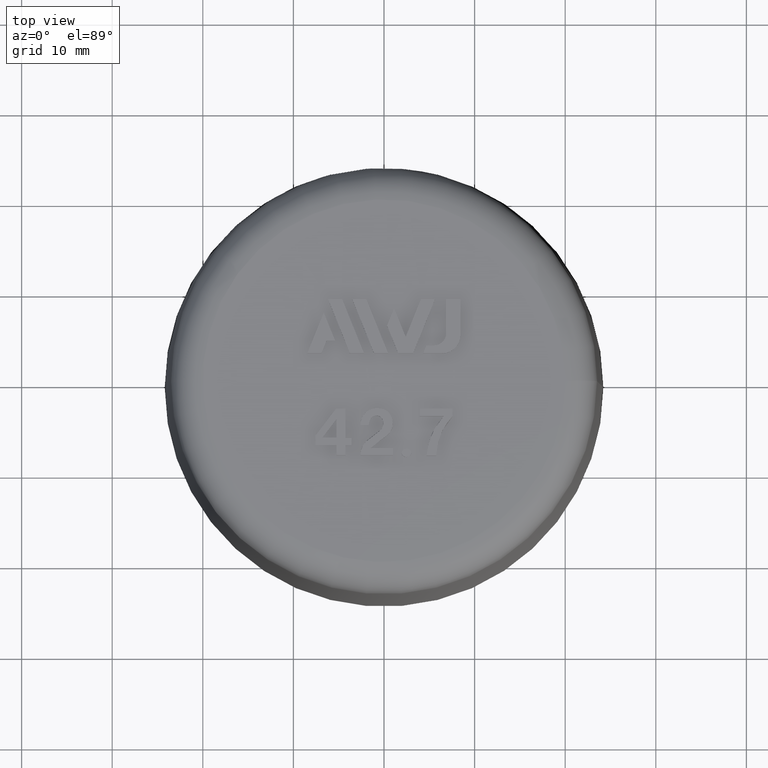
[diagram: clean part render]
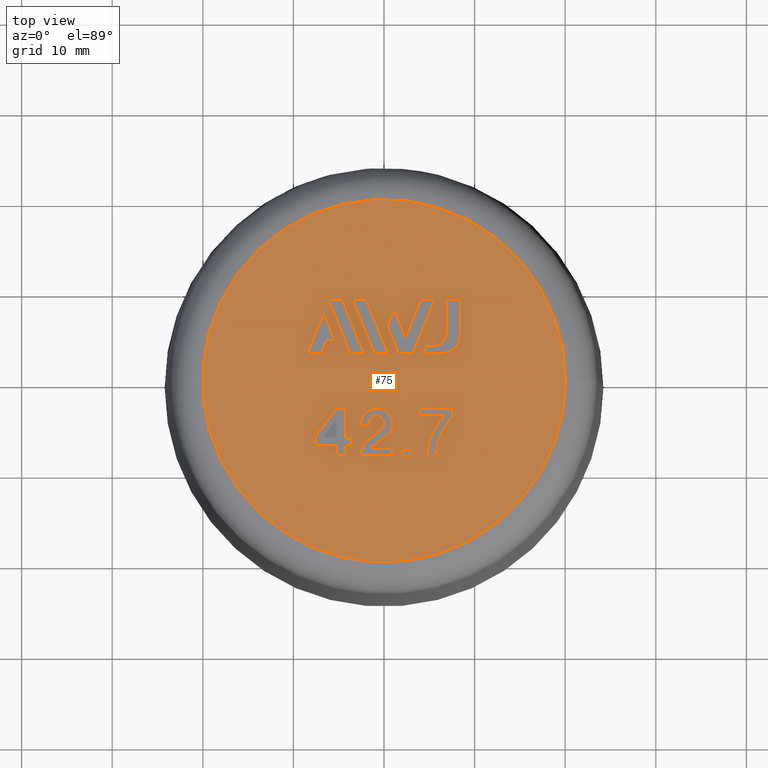
[diagram: same view with one face highlighted and labeled with its STEP entity id]
A machine part, top view. The second image highlights one B-rep face of the part: STEP entity #75.
In plain terms, the highlighted planar face has unit normal (0, 0, -1).
Its self-contained STEP definition (entity closure, byte-faithful):
#75 = ADVANCED_FACE( '', ( #149, #150, #151, #152, #153, #154, #155, #156, #157, #158 ), #159, .F. );
#149 = FACE_BOUND( '', #311, .T. );
#150 = FACE_BOUND( '', #312, .T. );
#151 = FACE_BOUND( '', #313, .T. );
#152 = FACE_BOUND( '', #314, .T. );
#153 = FACE_BOUND( '', #315, .T. );
#154 = FACE_BOUND( '', #316, .T. );
#155 = FACE_BOUND( '', #317, .T. );
#156 = FACE_OUTER_BOUND( '', #318, .T. );
#157 = FACE_BOUND( '', #319, .T. );
#158 = FACE_BOUND( '', #320, .T. );
#159 = PLANE( '', #321 );
#311 = EDGE_LOOP( '', ( #478, #479, #480, #481, #482, #483, #484 ) );
#312 = EDGE_LOOP( '', ( #485 ) );
#313 = EDGE_LOOP( '', ( #486, #487, #488, #489, #490, #491 ) );
#314 = EDGE_LOOP( '', ( #492, #493, #494, #495, #496, #497, #498, #499, #500, #501, #502 ) );
#315 = EDGE_LOOP( '', ( #503, #504, #505, #506, #507 ) );
#316 = EDGE_LOOP( '', ( #508, #509, #510, #511 ) );
#317 = EDGE_LOOP( '', ( #512, #513, #514, #515, #516, #517, #518, #519 ) );
#318 = EDGE_LOOP( '', ( #520 ) );
#319 = EDGE_LOOP( '', ( #521, #522, #523, #524, #525, #526, #527 ) );
#320 = EDGE_LOOP( '', ( #528, #529, #530, #531 ) );
#321 = AXIS2_PLACEMENT_3D( '', #532, #533, #534 );
#478 = ORIENTED_EDGE( '', *, *, #1086, .T. );
#479 = ORIENTED_EDGE( '', *, *, #1087, .T. );
#480 = ORIENTED_EDGE( '', *, *, #1088, .T. );
#481 = ORIENTED_EDGE( '', *, *, #1089, .T. );
#482 = ORIENTED_EDGE( '', *, *, #1090, .T. );
#483 = ORIENTED_EDGE( '', *, *, #1091, .T. );
#484 = ORIENTED_EDGE( '', *, *, #1092, .T. );
#485 = ORIENTED_EDGE( '', *, *, #1093, .T. );
#486 = ORIENTED_EDGE( '', *, *, #1094, .T. );
#487 = ORIENTED_EDGE( '', *, *, #1095, .T. );
#488 = ORIENTED_EDGE( '', *, *, #1096, .T. );
#489 = ORIENTED_EDGE( '', *, *, #1097, .T. );
#490 = ORIENTED_EDGE( '', *, *, #1098, .T. );
#491 = ORIENTED_EDGE( '', *, *, #1099, .T. );
#492 = ORIENTED_EDGE( '', *, *, #1100, .T. );
#493 = ORIENTED_EDGE( '', *, *, #1101, .T. );
#494 = ORIENTED_EDGE( '', *, *, #1102, .T. );
#495 = ORIENTED_EDGE( '', *, *, #1103, .T. );
#496 = ORIENTED_EDGE( '', *, *, #1104, .T. );
#497 = ORIENTED_EDGE( '', *, *, #1105, .T. );
#498 = ORIENTED_EDGE( '', *, *, #1106, .T. );
#499 = ORIENTED_EDGE( '', *, *, #1107, .T. );
#500 = ORIENTED_EDGE( '', *, *, #1108, .T. );
#501 = ORIENTED_EDGE( '', *, *, #1109, .T. );
#502 = ORIENTED_EDGE( '', *, *, #1110, .T. );
#503 = ORIENTED_EDGE( '', *, *, #1111, .F. );
#504 = ORIENTED_EDGE( '', *, *, #1112, .F. );
#505 = ORIENTED_EDGE( '', *, *, #1113, .F. );
#506 = ORIENTED_EDGE( '', *, *, #1114, .F. );
#507 = ORIENTED_EDGE( '', *, *, #1115, .F. );
#508 = ORIENTED_EDGE( '', *, *, #1116, .F. );
#509 = ORIENTED_EDGE( '', *, *, #1117, .F. );
#510 = ORIENTED_EDGE( '', *, *, #1118, .F. );
#511 = ORIENTED_EDGE( '', *, *, #1119, .F. );
#512 = ORIENTED_EDGE( '', *, *, #1120, .F. );
#513 = ORIENTED_EDGE( '', *, *, #1121, .F. );
#514 = ORIENTED_EDGE( '', *, *, #1122, .F. );
#515 = ORIENTED_EDGE( '', *, *, #1123, .F. );
#516 = ORIENTED_EDGE( '', *, *, #1124, .F. );
#517 = ORIENTED_EDGE( '', *, *, #1125, .F. );
#518 = ORIENTED_EDGE( '', *, *, #1126, .F. );
#519 = ORIENTED_EDGE( '', *, *, #1127, .F. );
#520 = ORIENTED_EDGE( '', *, *, #1128, .T. );
#521 = ORIENTED_EDGE( '', *, *, #1129, .F. );
#522 = ORIENTED_EDGE( '', *, *, #1130, .F. );
#523 = ORIENTED_EDGE( '', *, *, #1131, .F. );
#524 = ORIENTED_EDGE( '', *, *, #1132, .F. );
#525 = ORIENTED_EDGE( '', *, *, #1133, .F. );
#526 = ORIENTED_EDGE( '', *, *, #1134, .F. );
#527 = ORIENTED_EDGE( '', *, *, #1135, .F. );
#528 = ORIENTED_EDGE( '', *, *, #1136, .F. );
#529 = ORIENTED_EDGE( '', *, *, #1137, .F. );
#530 = ORIENTED_EDGE( '', *, *, #1138, .F. );
#531 = ORIENTED_EDGE( '', *, *, #1139, .F. );
#532 = CARTESIAN_POINT( '', ( -2.60228850187255E-015, 20.0182014383200, 42.5000000000000 ) );
#533 = DIRECTION( '', ( 6.12303176911189E-017, 0.000000000000000, -1.00000000000000 ) );
#534 = DIRECTION( '', ( -1.00000000000000, 0.000000000000000, -6.12303176911189E-017 ) );
#1086 = EDGE_CURVE( '', #1259, #1260, #1261, .T. );
#1087 = EDGE_CURVE( '', #1260, #1262, #1263, .T. );
#1088 = EDGE_CURVE( '', #1262, #1264, #1265, .T. );
#1089 = EDGE_CURVE( '', #1264, #1266, #1267, .T. );
#1090 = EDGE_CURVE( '', #1266, #1268, #1269, .T. );
#1091 = EDGE_CURVE( '', #1268, #1270, #1271, .T. );
#1092 = EDGE_CURVE( '', #1270, #1259, #1272, .T. );
#1093 = EDGE_CURVE( '', #1273, #1273, #1274, .T. );
#1094 = EDGE_CURVE( '', #1275, #1276, #1277, .T. );
#1095 = EDGE_CURVE( '', #1276, #1278, #1279, .T. );
#1096 = EDGE_CURVE( '', #1278, #1280, #1281, .T. );
#1097 = EDGE_CURVE( '', #1280, #1282, #1283, .T. );
#1098 = EDGE_CURVE( '', #1282, #1284, #1285, .T. );
#1099 = EDGE_CURVE( '', #1284, #1275, #1286, .T. );
#1100 = EDGE_CURVE( '', #1287, #1288, #1289, .T. );
#1101 = EDGE_CURVE( '', #1288, #1290, #1291, .T. );
#1102 = EDGE_CURVE( '', #1290, #1292, #1293, .T. );
#1103 = EDGE_CURVE( '', #1292, #1294, #1295, .T. );
#1104 = EDGE_CURVE( '', #1294, #1296, #1297, .T. );
#1105 = EDGE_CURVE( '', #1296, #1298, #1299, .T. );
#1106 = EDGE_CURVE( '', #1298, #1300, #1301, .T. );
#1107 = EDGE_CURVE( '', #1300, #1302, #1303, .T. );
#1108 = EDGE_CURVE( '', #1302, #1304, #1305, .T. );
#1109 = EDGE_CURVE( '', #1304, #1306, #1307, .T. );
#1110 = EDGE_CURVE( '', #1306, #1287, #1308, .T. );
#1111 = EDGE_CURVE( '', #1309, #1310, #1311, .T. );
#1112 = EDGE_CURVE( '', #1312, #1309, #1313, .T. );
#1113 = EDGE_CURVE( '', #1314, #1312, #1315, .T. );
#1114 = EDGE_CURVE( '', #1316, #1314, #1317, .T. );
#1115 = EDGE_CURVE( '', #1310, #1316, #1318, .T. );
#1116 = EDGE_CURVE( '', #1319, #1320, #1321, .T. );
#1117 = EDGE_CURVE( '', #1322, #1319, #1323, .T. );
#1118 = EDGE_CURVE( '', #1324, #1322, #1325, .T. );
#1119 = EDGE_CURVE( '', #1320, #1324, #1326, .T. );
#1120 = EDGE_CURVE( '', #1327, #1328, #1329, .T. );
#1121 = EDGE_CURVE( '', #1330, #1327, #1331, .T. );
#1122 = EDGE_CURVE( '', #1332, #1330, #1333, .T. );
#1123 = EDGE_CURVE( '', #1334, #1332, #1335, .F. );
#1124 = EDGE_CURVE( '', #1336, #1334, #1337, .T. );
#1125 = EDGE_CURVE( '', #1338, #1336, #1339, .T. );
#1126 = EDGE_CURVE( '', #1340, #1338, #1341, .T. );
#1127 = EDGE_CURVE( '', #1328, #1340, #1342, .T. );
#1128 = EDGE_CURVE( '', #1343, #1343, #1344, .T. );
#1129 = EDGE_CURVE( '', #1345, #1346, #1347, .T. );
#1130 = EDGE_CURVE( '', #1348, #1345, #1349, .T. );
#1131 = EDGE_CURVE( '', #1350, #1348, #1351, .T. );
#1132 = EDGE_CURVE( '', #1352, #1350, #1353, .T. );
#1133 = EDGE_CURVE( '', #1354, #1352, #1355, .T. );
#1134 = EDGE_CURVE( '', #1356, #1354, #1357, .T. );
#1135 = EDGE_CURVE( '', #1346, #1356, #1358, .T. );
#1136 = EDGE_CURVE( '', #1359, #1360, #1361, .T. );
#1137 = EDGE_CURVE( '', #1362, #1359, #1363, .T. );
#1138 = EDGE_CURVE( '', #1364, #1362, #1365, .T. );
#1139 = EDGE_CURVE( '', #1360, #1364, #1366, .T. );
#1259 = VERTEX_POINT( '', #1550 );
#1260 = VERTEX_POINT( '', #1551 );
#1261 = B_SPLINE_CURVE_WITH_KNOTS( '', 2, ( #1552, #1553, #1554 ), .UNSPECIFIED., .F., .F., ( 3, 3 ), ( 8.00000000000000, 9.00000000000000 ), .UNSPECIFIED. );
#1262 = VERTEX_POINT( '', #1555 );
#1263 = B_SPLINE_CURVE_WITH_KNOTS( '', 2, ( #1556, #1557, #1558 ), .UNSPECIFIED., .F., .F., ( 3, 3 ), ( 0.000000000000000, 1.00000000000000 ), .UNSPECIFIED. );
#1264 = VERTEX_POINT( '', #1559 );
#1265 = B_SPLINE_CURVE_WITH_KNOTS( '', 2, ( #1560, #1561, #1562 ), .UNSPECIFIED., .F., .F., ( 3, 3 ), ( 1.00000000000000, 2.00000000000000 ), .UNSPECIFIED. );
#1266 = VERTEX_POINT( '', #1563 );
#1267 = B_SPLINE_CURVE_WITH_KNOTS( '', 2, ( #1564, #1565, #1566 ), .UNSPECIFIED., .F., .F., ( 3, 3 ), ( 2.00000000000000, 3.00000000000000 ), .UNSPECIFIED. );
#1268 = VERTEX_POINT( '', #1567 );
#1269 = B_SPLINE_CURVE_WITH_KNOTS( '', 2, ( #1568, #1569, #1570, #1571, #1572 ), .UNSPECIFIED., .F., .F., ( 3, 2, 3 ), ( 3.00000000000000, 4.00000000000000, 5.00000000000000 ), .UNSPECIFIED. );
#1270 = VERTEX_POINT( '', #1573 );
#1271 = B_SPLINE_CURVE_WITH_KNOTS( '', 2, ( #1574, #1575, #1576 ), .UNSPECIFIED., .F., .F., ( 3, 3 ), ( 5.00000000000000, 6.00000000000000 ), .UNSPECIFIED. );
#1272 = B_SPLINE_CURVE_WITH_KNOTS( '', 2, ( #1577, #1578, #1579, #1580, #1581 ), .UNSPECIFIED., .F., .F., ( 3, 2, 3 ), ( 6.00000000000000, 7.00000000000000, 8.00000000000000 ), .UNSPECIFIED. );
#1273 = VERTEX_POINT( '', #1582 );
#1274 = B_SPLINE_CURVE_WITH_KNOTS( '', 2, ( #1583, #1584, #1585, #1586, #1587, #1588, #1589, #1590, #1591, #1592, #1593, #1594, #1595, #1596, #1597, #1598, #1599 ), .UNSPECIFIED., .T., .F., ( 3, 2, 2, 2, 2, 2, 2, 2, 3 ), ( 0.000000000000000, 1.00000000000000, 2.00000000000000, 3.00000000000000, 4.00000000000000, 5.00000000000000, 6.00000000000000, 7.00000000000000, 8.00000000000000 ), .UNSPECIFIED. );
#1275 = VERTEX_POINT( '', #1600 );
#1276 = VERTEX_POINT( '', #1601 );
#1277 = B_SPLINE_CURVE_WITH_KNOTS( '', 2, ( #1602, #1603, #1604 ), .UNSPECIFIED., .F., .F., ( 3, 3 ), ( 15.0000000000000, 16.0000000000000 ), .UNSPECIFIED. );
#1278 = VERTEX_POINT( '', #1605 );
#1279 = B_SPLINE_CURVE_WITH_KNOTS( '', 2, ( #1606, #1607, #1608, #1609, #1610, #1611, #1612, #1613, #1614, #1615, #1616, #1617, #1618 ), .UNSPECIFIED., .F., .F., ( 3, 2, 2, 2, 2, 2, 3 ), ( 0.000000000000000, 1.00000000000000, 2.00000000000000, 3.00000000000000, 4.00000000000000, 5.00000000000000, 6.00000000000000 ), .UNSPECIFIED. );
#1280 = VERTEX_POINT( '', #1619 );
#1281 = B_SPLINE_CURVE_WITH_KNOTS( '', 2, ( #1620, #1621, #1622 ), .UNSPECIFIED., .F., .F., ( 3, 3 ), ( 6.00000000000000, 7.00000000000000 ), .UNSPECIFIED. );
#1282 = VERTEX_POINT( '', #1623 );
#1283 = B_SPLINE_CURVE_WITH_KNOTS( '', 2, ( #1624, #1625, #1626 ), .UNSPECIFIED., .F., .F., ( 3, 3 ), ( 7.00000000000000, 8.00000000000000 ), .UNSPECIFIED. );
#1284 = VERTEX_POINT( '', #1627 );
#1285 = B_SPLINE_CURVE_WITH_KNOTS( '', 2, ( #1628, #1629, #1630 ), .UNSPECIFIED., .F., .F., ( 3, 3 ), ( 8.00000000000000, 9.00000000000000 ), .UNSPECIFIED. );
#1286 = B_SPLINE_CURVE_WITH_KNOTS( '', 2, ( #1631, #1632, #1633, #1634, #1635, #1636, #1637, #1638, #1639, #1640, #1641, #1642, #1643 ), .UNSPECIFIED., .F., .F., ( 3, 2, 2, 2, 2, 2, 3 ), ( 9.00000000000000, 10.0000000000000, 11.0000000000000, 12.0000000000000, 13.0000000000000, 14.0000000000000, 15.0000000000000 ), .UNSPECIFIED. );
#1287 = VERTEX_POINT( '', #1644 );
#1288 = VERTEX_POINT( '', #1645 );
#1289 = B_SPLINE_CURVE_WITH_KNOTS( '', 2, ( #1646, #1647, #1648 ), .UNSPECIFIED., .F., .F., ( 3, 3 ), ( 10.0000000000000, 11.0000000000000 ), .UNSPECIFIED. );
#1290 = VERTEX_POINT( '', #1649 );
#1291 = B_SPLINE_CURVE_WITH_KNOTS( '', 2, ( #1650, #1651, #1652 ), .UNSPECIFIED., .F., .F., ( 3, 3 ), ( 0.000000000000000, 1.00000000000000 ), .UNSPECIFIED. );
#1292 = VERTEX_POINT( '', #1653 );
#1293 = B_SPLINE_CURVE_WITH_KNOTS( '', 2, ( #1654, #1655, #1656 ), .UNSPECIFIED., .F., .F., ( 3, 3 ), ( 1.00000000000000, 2.00000000000000 ), .UNSPECIFIED. );
#1294 = VERTEX_POINT( '', #1657 );
#1295 = B_SPLINE_CURVE_WITH_KNOTS( '', 2, ( #1658, #1659, #1660 ), .UNSPECIFIED., .F., .F., ( 3, 3 ), ( 2.00000000000000, 3.00000000000000 ), .UNSPECIFIED. );
#1296 = VERTEX_POINT( '', #1661 );
#1297 = B_SPLINE_CURVE_WITH_KNOTS( '', 2, ( #1662, #1663, #1664 ), .UNSPECIFIED., .F., .F., ( 3, 3 ), ( 3.00000000000000, 4.00000000000000 ), .UNSPECIFIED. );
#1298 = VERTEX_POINT( '', #1665 );
#1299 = B_SPLINE_CURVE_WITH_KNOTS( '', 2, ( #1666, #1667, #1668 ), .UNSPECIFIED., .F., .F., ( 3, 3 ), ( 4.00000000000000, 5.00000000000000 ), .UNSPECIFIED. );
#1300 = VERTEX_POINT( '', #1669 );
#1301 = B_SPLINE_CURVE_WITH_KNOTS( '', 2, ( #1670, #1671, #1672 ), .UNSPECIFIED., .F., .F., ( 3, 3 ), ( 5.00000000000000, 6.00000000000000 ), .UNSPECIFIED. );
#1302 = VERTEX_POINT( '', #1673 );
#1303 = B_SPLINE_CURVE_WITH_KNOTS( '', 2, ( #1674, #1675, #1676 ), .UNSPECIFIED., .F., .F., ( 3, 3 ), ( 6.00000000000000, 7.00000000000000 ), .UNSPECIFIED. );
#1304 = VERTEX_POINT( '', #1677 );
#1305 = B_SPLINE_CURVE_WITH_KNOTS( '', 2, ( #1678, #1679, #1680 ), .UNSPECIFIED., .F., .F., ( 3, 3 ), ( 7.00000000000000, 8.00000000000000 ), .UNSPECIFIED. );
#1306 = VERTEX_POINT( '', #1681 );
#1307 = B_SPLINE_CURVE_WITH_KNOTS( '', 2, ( #1682, #1683, #1684 ), .UNSPECIFIED., .F., .F., ( 3, 3 ), ( 8.00000000000000, 9.00000000000000 ), .UNSPECIFIED. );
#1308 = B_SPLINE_CURVE_WITH_KNOTS( '', 2, ( #1685, #1686, #1687 ), .UNSPECIFIED., .F., .F., ( 3, 3 ), ( 9.00000000000000, 10.0000000000000 ), .UNSPECIFIED. );
#1309 = VERTEX_POINT( '', #1688 );
#1310 = VERTEX_POINT( '', #1689 );
#1311 = LINE( '', #1690, #1691 );
#1312 = VERTEX_POINT( '', #1692 );
#1313 = LINE( '', #1693, #1694 );
#1314 = VERTEX_POINT( '', #1695 );
#1315 = LINE( '', #1696, #1697 );
#1316 = VERTEX_POINT( '', #1698 );
#1317 = LINE( '', #1699, #1700 );
#1318 = LINE( '', #1701, #1702 );
#1319 = VERTEX_POINT( '', #1703 );
#1320 = VERTEX_POINT( '', #1704 );
#1321 = LINE( '', #1705, #1706 );
#1322 = VERTEX_POINT( '', #1707 );
#1323 = LINE( '', #1708, #1709 );
#1324 = VERTEX_POINT( '', #1710 );
#1325 = LINE( '', #1711, #1712 );
#1326 = LINE( '', #1713, #1714 );
#1327 = VERTEX_POINT( '', #1715 );
#1328 = VERTEX_POINT( '', #1716 );
#1329 = LINE( '', #1717, #1718 );
#1330 = VERTEX_POINT( '', #1719 );
#1331 = LINE( '', #1720, #1721 );
#1332 = VERTEX_POINT( '', #1722 );
#1333 = LINE( '', #1723, #1724 );
#1334 = VERTEX_POINT( '', #1725 );
#1335 = CIRCLE( '', #1726, 1.99950000000000 );
#1336 = VERTEX_POINT( '', #1727 );
#1337 = LINE( '', #1728, #1729 );
#1338 = VERTEX_POINT( '', #1730 );
#1339 = LINE( '', #1731, #1732 );
#1340 = VERTEX_POINT( '', #1733 );
#1341 = LINE( '', #1734, #1735 );
#1342 = CIRCLE( '', #1736, 1.33300000000000 );
#1343 = VERTEX_POINT( '', #1737 );
#1344 = CIRCLE( '', #1738, 20.0182014383200 );
#1345 = VERTEX_POINT( '', #1739 );
#1346 = VERTEX_POINT( '', #1740 );
#1347 = LINE( '', #1741, #1742 );
#1348 = VERTEX_POINT( '', #1743 );
#1349 = LINE( '', #1744, #1745 );
#1350 = VERTEX_POINT( '', #1746 );
#1351 = LINE( '', #1747, #1748 );
#1352 = VERTEX_POINT( '', #1749 );
#1353 = LINE( '', #1750, #1751 );
#1354 = VERTEX_POINT( '', #1752 );
#1355 = LINE( '', #1753, #1754 );
#1356 = VERTEX_POINT( '', #1755 );
#1357 = LINE( '', #1756, #1757 );
#1358 = LINE( '', #1758, #1759 );
#1359 = VERTEX_POINT( '', #1760 );
#1360 = VERTEX_POINT( '', #1761 );
#1361 = LINE( '', #1762, #1763 );
#1362 = VERTEX_POINT( '', #1764 );
#1363 = LINE( '', #1765, #1766 );
#1364 = VERTEX_POINT( '', #1767 );
#1365 = LINE( '', #1768, #1769 );
#1366 = LINE( '', #1770, #1771 );
#1550 = CARTESIAN_POINT( '', ( 6.58500000000000, -3.90974791239786, 42.5000000000000 ) );
#1551 = CARTESIAN_POINT( '', ( 3.94500000000000, -3.90974791239786, 42.5000000000000 ) );
#1552 = CARTESIAN_POINT( '', ( 6.58500000000000, -3.90974791239786, 42.5000000000000 ) );
#1553 = CARTESIAN_POINT( '', ( 5.26500000000000, -3.90974791239786, 42.5000000000000 ) );
#1554 = CARTESIAN_POINT( '', ( 3.94500000000000, -3.90974791239786, 42.5000000000000 ) );
#1555 = CARTESIAN_POINT( '', ( 3.94500000000000, -3.08474791239786, 42.5000000000000 ) );
#1556 = CARTESIAN_POINT( '', ( 3.94500000000000, -3.90974791239786, 42.5000000000000 ) );
#1557 = CARTESIAN_POINT( '', ( 3.94500000000000, -3.49724791239786, 42.5000000000000 ) );
#1558 = CARTESIAN_POINT( '', ( 3.94500000000000, -3.08474791239786, 42.5000000000000 ) );
#1559 = CARTESIAN_POINT( '', ( 7.54500000000000, -3.08474791239786, 42.5000000000000 ) );
#1560 = CARTESIAN_POINT( '', ( 3.94500000000000, -3.08474791239786, 42.5000000000000 ) );
#1561 = CARTESIAN_POINT( '', ( 5.74500000000000, -3.08474791239786, 42.5000000000000 ) );
#1562 = CARTESIAN_POINT( '', ( 7.54500000000000, -3.08474791239786, 42.5000000000000 ) );
#1563 = CARTESIAN_POINT( '', ( 7.54500000000000, -3.95974791239786, 42.5000000000000 ) );
#1564 = CARTESIAN_POINT( '', ( 7.54500000000000, -3.08474791239786, 42.5000000000000 ) );
#1565 = CARTESIAN_POINT( '', ( 7.54500000000000, -3.52224791239786, 42.5000000000000 ) );
#1566 = CARTESIAN_POINT( '', ( 7.54500000000000, -3.95974791239786, 42.5000000000000 ) );
#1567 = CARTESIAN_POINT( '', ( 5.74500000000000, -8.28474791239786, 42.5000000000000 ) );
#1568 = CARTESIAN_POINT( '', ( 7.54500000000000, -3.95974791239786, 42.5000000000000 ) );
#1569 = CARTESIAN_POINT( '', ( 6.61500000000000, -5.03474791239786, 42.5000000000000 ) );
#1570 = CARTESIAN_POINT( '', ( 6.22500000000000, -6.00974791239786, 42.5000000000000 ) );
#1571 = CARTESIAN_POINT( '', ( 5.83500000000000, -6.98474791239786, 42.5000000000000 ) );
#1572 = CARTESIAN_POINT( '', ( 5.74500000000000, -8.28474791239786, 42.5000000000000 ) );
#1573 = CARTESIAN_POINT( '', ( 4.69500000000000, -8.28474791239786, 42.5000000000000 ) );
#1574 = CARTESIAN_POINT( '', ( 5.74500000000000, -8.28474791239786, 42.5000000000000 ) );
#1575 = CARTESIAN_POINT( '', ( 5.22000000000000, -8.28474791239786, 42.5000000000000 ) );
#1576 = CARTESIAN_POINT( '', ( 4.69500000000000, -8.28474791239786, 42.5000000000000 ) );
#1577 = CARTESIAN_POINT( '', ( 4.69500000000000, -8.28474791239786, 42.5000000000000 ) );
#1578 = CARTESIAN_POINT( '', ( 4.87500000000000, -6.78474791239786, 42.5000000000000 ) );
#1579 = CARTESIAN_POINT( '', ( 5.29674855026302, -5.86054584237704, 42.5000000000000 ) );
#1580 = CARTESIAN_POINT( '', ( 5.68500000000000, -5.00974791239786, 42.5000000000000 ) );
#1581 = CARTESIAN_POINT( '', ( 6.58500000000000, -3.90974791239786, 42.5000000000000 ) );
#1582 = CARTESIAN_POINT( '', ( 2.47500000000000, -7.53474791239786, 42.5000000000000 ) );
#1583 = CARTESIAN_POINT( '', ( 2.47500000000000, -7.53474791239786, 42.5000000000000 ) );
#1584 = CARTESIAN_POINT( '', ( 2.68500000000000, -7.53474791239786, 42.5000000000000 ) );
#1585 = CARTESIAN_POINT( '', ( 2.86500000000000, -7.68474791239786, 42.5000000000000 ) );
#1586 = CARTESIAN_POINT( '', ( 3.01500000000000, -7.80974791239786, 42.5000000000000 ) );
#1587 = CARTESIAN_POINT( '', ( 3.01500000000000, -7.98474791239786, 42.5000000000000 ) );
#1588 = CARTESIAN_POINT( '', ( 3.01500000000000, -8.15974791239786, 42.5000000000000 ) );
#1589 = CARTESIAN_POINT( '', ( 2.86500000000000, -8.28474791239786, 42.5000000000000 ) );
#1590 = CARTESIAN_POINT( '', ( 2.68500000000000, -8.43474791239786, 42.5000000000000 ) );
#1591 = CARTESIAN_POINT( '', ( 2.47500000000000, -8.43474791239786, 42.5000000000000 ) );
#1592 = CARTESIAN_POINT( '', ( 2.26500000000000, -8.43474791239786, 42.5000000000000 ) );
#1593 = CARTESIAN_POINT( '', ( 2.08500000000000, -8.28474791239786, 42.5000000000000 ) );
#1594 = CARTESIAN_POINT( '', ( 1.93500000000000, -8.15974791239786, 42.5000000000000 ) );
#1595 = CARTESIAN_POINT( '', ( 1.93500000000000, -7.98474791239786, 42.5000000000000 ) );
#1596 = CARTESIAN_POINT( '', ( 1.93500000000000, -7.80974791239786, 42.5000000000000 ) );
#1597 = CARTESIAN_POINT( '', ( 2.08500000000000, -7.68474791239786, 42.5000000000000 ) );
#1598 = CARTESIAN_POINT( '', ( 2.26500000000000, -7.53474791239786, 42.5000000000000 ) );
#1599 = CARTESIAN_POINT( '', ( 2.47500000000000, -7.53474791239786, 42.5000000000000 ) );
#1600 = CARTESIAN_POINT( '', ( -1.69500000000000, -4.90974791239786, 42.5000000000000 ) );
#1601 = CARTESIAN_POINT( '', ( -2.59500000000000, -4.90974791239786, 42.5000000000000 ) );
#1602 = CARTESIAN_POINT( '', ( -1.69500000000000, -4.90974791239786, 42.5000000000000 ) );
#1603 = CARTESIAN_POINT( '', ( -2.14500000000000, -4.90974791239786, 42.5000000000000 ) );
#1604 = CARTESIAN_POINT( '', ( -2.59500000000000, -4.90974791239786, 42.5000000000000 ) );
#1605 = CARTESIAN_POINT( '', ( -1.42500000000000, -7.43474791239786, 42.5000000000000 ) );
#1606 = CARTESIAN_POINT( '', ( -2.59500000000000, -4.90974791239786, 42.5000000000000 ) );
#1607 = CARTESIAN_POINT( '', ( -2.59500000000000, -4.05974791239786, 42.5000000000000 ) );
#1608 = CARTESIAN_POINT( '', ( -2.04253692762186, -3.54820803056625, 42.5000000000000 ) );
#1609 = CARTESIAN_POINT( '', ( -1.51500000000000, -3.05974791239786, 42.5000000000000 ) );
#1610 = CARTESIAN_POINT( '', ( -0.765000000000003, -3.05974791239786, 42.5000000000000 ) );
#1611 = CARTESIAN_POINT( '', ( 0.524999999999997, -3.05974791239786, 42.5000000000000 ) );
#1612 = CARTESIAN_POINT( '', ( 0.887871536523927, -4.20884111139030, 42.5000000000000 ) );
#1613 = CARTESIAN_POINT( '', ( 1.27500000000000, -5.43474791239786, 42.5000000000000 ) );
#1614 = CARTESIAN_POINT( '', ( 0.0221294598570353, -6.29512968765035, 42.5000000000000 ) );
#1615 = CARTESIAN_POINT( '', ( -0.345000000000002, -6.54724791239786, 42.5000000000000 ) );
#1616 = CARTESIAN_POINT( '', ( -0.703806455648695, -6.81136933113926, 42.5000000000000 ) );
#1617 = CARTESIAN_POINT( '', ( -1.24500000000000, -7.20974791239786, 42.5000000000000 ) );
#1618 = CARTESIAN_POINT( '', ( -1.42500000000000, -7.43474791239786, 42.5000000000000 ) );
#1619 = CARTESIAN_POINT( '', ( 1.00500000000000, -7.43474791239786, 42.5000000000000 ) );
#1620 = CARTESIAN_POINT( '', ( -1.42500000000000, -7.43474791239786, 42.5000000000000 ) );
#1621 = CARTESIAN_POINT( '', ( -0.210000000000003, -7.43474791239786, 42.5000000000000 ) );
#1622 = CARTESIAN_POINT( '', ( 1.00500000000000, -7.43474791239786, 42.5000000000000 ) );
#1623 = CARTESIAN_POINT( '', ( 1.00500000000000, -8.25974791239786, 42.5000000000000 ) );
#1624 = CARTESIAN_POINT( '', ( 1.00500000000000, -7.43474791239786, 42.5000000000000 ) );
#1625 = CARTESIAN_POINT( '', ( 1.00500000000000, -7.84724791239786, 42.5000000000000 ) );
#1626 = CARTESIAN_POINT( '', ( 1.00500000000000, -8.25974791239786, 42.5000000000000 ) );
#1627 = CARTESIAN_POINT( '', ( -2.59500000000000, -8.25974791239786, 42.5000000000000 ) );
#1628 = CARTESIAN_POINT( '', ( 1.00500000000000, -8.25974791239786, 42.5000000000000 ) );
#1629 = CARTESIAN_POINT( '', ( -0.795000000000003, -8.25974791239786, 42.5000000000000 ) );
#1630 = CARTESIAN_POINT( '', ( -2.59500000000000, -8.25974791239786, 42.5000000000000 ) );
#1631 = CARTESIAN_POINT( '', ( -2.59500000000000, -8.25974791239786, 42.5000000000000 ) );
#1632 = CARTESIAN_POINT( '', ( -2.62500000000000, -7.10974791239786, 42.5000000000000 ) );
#1633 = CARTESIAN_POINT( '', ( -1.48363147010523, -6.28664560718528, 42.5000000000000 ) );
#1634 = CARTESIAN_POINT( '', ( -1.06500000000000, -5.98474791239786, 42.5000000000000 ) );
#1635 = CARTESIAN_POINT( '', ( -0.646874786956031, -5.68215729769498, 42.5000000000000 ) );
#1636 = CARTESIAN_POINT( '', ( 0.0749999999999978, -5.15974791239786, 42.5000000000000 ) );
#1637 = CARTESIAN_POINT( '', ( -0.0992821676400590, -4.46584668938652, 42.5000000000000 ) );
#1638 = CARTESIAN_POINT( '', ( -0.195000000000003, -4.08474791239786, 42.5000000000000 ) );
#1639 = CARTESIAN_POINT( '', ( -0.522227356746768, -3.92892536156606, 42.5000000000000 ) );
#1640 = CARTESIAN_POINT( '', ( -0.825000000000003, -3.78474791239786, 42.5000000000000 ) );
#1641 = CARTESIAN_POINT( '', ( -1.18389719397133, -3.96198109460592, 42.5000000000000 ) );
#1642 = CARTESIAN_POINT( '', ( -1.63500000000000, -4.18474791239786, 42.5000000000000 ) );
#1643 = CARTESIAN_POINT( '', ( -1.69500000000000, -4.90974791239786, 42.5000000000000 ) );
#1644 = CARTESIAN_POINT( '', ( -5.23500000000000, -7.13474791239786, 42.5000000000000 ) );
#1645 = CARTESIAN_POINT( '', ( -7.54500000000000, -7.13474791239786, 42.5000000000000 ) );
#1646 = CARTESIAN_POINT( '', ( -5.23500000000000, -7.13474791239786, 42.5000000000000 ) );
#1647 = CARTESIAN_POINT( '', ( -6.39000000000000, -7.13474791239786, 42.5000000000000 ) );
#1648 = CARTESIAN_POINT( '', ( -7.54500000000000, -7.13474791239786, 42.5000000000000 ) );
#1649 = CARTESIAN_POINT( '', ( -7.54500000000000, -6.05974791239786, 42.5000000000000 ) );
#1650 = CARTESIAN_POINT( '', ( -7.54500000000000, -7.13474791239786, 42.5000000000000 ) );
#1651 = CARTESIAN_POINT( '', ( -7.54500000000000, -6.59724791239786, 42.5000000000000 ) );
#1652 = CARTESIAN_POINT( '', ( -7.54500000000000, -6.05974791239786, 42.5000000000000 ) );
#1653 = CARTESIAN_POINT( '', ( -5.29500000000000, -3.10974791239786, 42.5000000000000 ) );
#1654 = CARTESIAN_POINT( '', ( -7.54500000000000, -6.05974791239786, 42.5000000000000 ) );
#1655 = CARTESIAN_POINT( '', ( -6.42000000000000, -4.58474791239786, 42.5000000000000 ) );
#1656 = CARTESIAN_POINT( '', ( -5.29500000000000, -3.10974791239786, 42.5000000000000 ) );
#1657 = CARTESIAN_POINT( '', ( -4.27500000000000, -3.10974791239786, 42.5000000000000 ) );
#1658 = CARTESIAN_POINT( '', ( -5.29500000000000, -3.10974791239786, 42.5000000000000 ) );
#1659 = CARTESIAN_POINT( '', ( -4.78500000000000, -3.10974791239786, 42.5000000000000 ) );
#1660 = CARTESIAN_POINT( '', ( -4.27500000000000, -3.10974791239786, 42.5000000000000 ) );
#1661 = CARTESIAN_POINT( '', ( -4.27500000000000, -6.33474791239786, 42.5000000000000 ) );
#1662 = CARTESIAN_POINT( '', ( -4.27500000000000, -3.10974791239786, 42.5000000000000 ) );
#1663 = CARTESIAN_POINT( '', ( -4.27500000000000, -4.72224791239786, 42.5000000000000 ) );
#1664 = CARTESIAN_POINT( '', ( -4.27500000000000, -6.33474791239786, 42.5000000000000 ) );
#1665 = CARTESIAN_POINT( '', ( -3.58500000000000, -6.33474791239786, 42.5000000000000 ) );
#1666 = CARTESIAN_POINT( '', ( -4.27500000000000, -6.33474791239786, 42.5000000000000 ) );
#1667 = CARTESIAN_POINT( '', ( -3.93000000000000, -6.33474791239786, 42.5000000000000 ) );
#1668 = CARTESIAN_POINT( '', ( -3.58500000000000, -6.33474791239786, 42.5000000000000 ) );
#1669 = CARTESIAN_POINT( '', ( -3.58500000000000, -7.13474791239786, 42.5000000000000 ) );
#1670 = CARTESIAN_POINT( '', ( -3.58500000000000, -6.33474791239786, 42.5000000000000 ) );
#1671 = CARTESIAN_POINT( '', ( -3.58500000000000, -6.73474791239786, 42.5000000000000 ) );
#1672 = CARTESIAN_POINT( '', ( -3.58500000000000, -7.13474791239786, 42.5000000000000 ) );
#1673 = CARTESIAN_POINT( '', ( -4.27500000000000, -7.13474791239786, 42.5000000000000 ) );
#1674 = CARTESIAN_POINT( '', ( -3.58500000000000, -7.13474791239786, 42.5000000000000 ) );
#1675 = CARTESIAN_POINT( '', ( -3.93000000000000, -7.13474791239786, 42.5000000000000 ) );
#1676 = CARTESIAN_POINT( '', ( -4.27500000000000, -7.13474791239786, 42.5000000000000 ) );
#1677 = CARTESIAN_POINT( '', ( -4.27500000000000, -8.25974791239786, 42.5000000000000 ) );
#1678 = CARTESIAN_POINT( '', ( -4.27500000000000, -7.13474791239786, 42.5000000000000 ) );
#1679 = CARTESIAN_POINT( '', ( -4.27500000000000, -7.69724791239786, 42.5000000000000 ) );
#1680 = CARTESIAN_POINT( '', ( -4.27500000000000, -8.25974791239786, 42.5000000000000 ) );
#1681 = CARTESIAN_POINT( '', ( -5.23500000000000, -8.25974791239786, 42.5000000000000 ) );
#1682 = CARTESIAN_POINT( '', ( -4.27500000000000, -8.25974791239786, 42.5000000000000 ) );
#1683 = CARTESIAN_POINT( '', ( -4.75500000000000, -8.25974791239786, 42.5000000000000 ) );
#1684 = CARTESIAN_POINT( '', ( -5.23500000000000, -8.25974791239786, 42.5000000000000 ) );
#1685 = CARTESIAN_POINT( '', ( -5.23500000000000, -8.25974791239786, 42.5000000000000 ) );
#1686 = CARTESIAN_POINT( '', ( -5.23500000000000, -7.69724791239786, 42.5000000000000 ) );
#1687 = CARTESIAN_POINT( '', ( -5.23500000000000, -7.13474791239786, 42.5000000000000 ) );
#1688 = CARTESIAN_POINT( '', ( -8.46940212000001, 3.00350208760216, 42.5000000000000 ) );
#1689 = CARTESIAN_POINT( '', ( -6.92093400049999, 3.00350208760216, 42.5000000000000 ) );
#1690 = CARTESIAN_POINT( '', ( -3.74141384638712E-015, 3.00350208760216, 42.5000000000000 ) );
#1691 = VECTOR( '', #2133, 1000.00000000000 );
#1692 = CARTESIAN_POINT( '', ( -6.65385078800001, 7.49772891660216, 42.5000000000000 ) );
#1693 = CARTESIAN_POINT( '', ( -1.37200021057535, 20.5724540171487, 42.5000000000000 ) );
#1694 = VECTOR( '', #2134, 1000.00000000000 );
#1695 = CARTESIAN_POINT( '', ( -5.39798416650000, 4.38791323160217, 42.5000000000000 ) );
#1696 = CARTESIAN_POINT( '', ( -10.0681368416892, 15.9522894097838, 42.5000000000000 ) );
#1697 = VECTOR( '', #2135, 1000.00000000000 );
#1698 = CARTESIAN_POINT( '', ( -6.36118863849999, 4.38791323160217, 42.5000000000000 ) );
#1699 = CARTESIAN_POINT( '', ( -2.78107294201220E-015, 4.38791323160217, 42.5000000000000 ) );
#1700 = VECTOR( '', #2136, 1000.00000000000 );
#1701 = CARTESIAN_POINT( '', ( -0.0357100193420940, 20.0326397197440, 42.5000000000000 ) );
#1702 = VECTOR( '', #2137, 1000.00000000000 );
#1703 = CARTESIAN_POINT( '', ( 0.453852508499999, 3.00350208760216, 42.5000000000000 ) );
#1704 = CARTESIAN_POINT( '', ( -1.96818516400000, 8.99761385160217, 42.5000000000000 ) );
#1705 = CARTESIAN_POINT( '', ( -5.52000522188465, 17.7877357536295, 42.5000000000000 ) );
#1706 = VECTOR( '', #2138, 1000.00000000000 );
#1707 = CARTESIAN_POINT( '', ( -1.09506683150001, 3.00350208760216, 42.5000000000000 ) );
#1708 = CARTESIAN_POINT( '', ( -3.64410394853588E-015, 3.00350208760216, 42.5000000000000 ) );
#1709 = VECTOR( '', #2139, 1000.00000000000 );
#1710 = CARTESIAN_POINT( '', ( -3.51710383750000, 8.99761385160217, 42.5000000000000 ) );
#1711 = CARTESIAN_POINT( '', ( -6.85152344148259, 17.2497106299882, 42.5000000000000 ) );
#1712 = VECTOR( '', #2140, 1000.00000000000 );
#1713 = CARTESIAN_POINT( '', ( -3.27708258095008E-015, 8.99761385160217, 42.5000000000000 ) );
#1714 = VECTOR( '', #2141, 1000.00000000000 );
#1715 = CARTESIAN_POINT( '', ( 6.85682136599999, 8.99761385160217, 42.5000000000000 ) );
#1716 = CARTESIAN_POINT( '', ( 6.85682136600000, 5.20815945210217, 42.5000000000000 ) );
#1717 = CARTESIAN_POINT( '', ( 6.85682136599999, 20.0182014383200, 42.5000000000000 ) );
#1718 = VECTOR( '', #2142, 1000.00000000000 );
#1719 = CARTESIAN_POINT( '', ( 8.42332697500000, 8.99761385160217, 42.5000000000000 ) );
#1720 = CARTESIAN_POINT( '', ( -3.34011115584400E-015, 8.99761385160217, 42.5000000000000 ) );
#1721 = VECTOR( '', #2143, 1000.00000000000 );
#1722 = CARTESIAN_POINT( '', ( 8.42332697500000, 5.00300208760216, 42.5000000000000 ) );
#1723 = CARTESIAN_POINT( '', ( 8.42332697500000, 20.0182014383200, 42.5000000000000 ) );
#1724 = VECTOR( '', #2144, 1000.00000000000 );
#1725 = CARTESIAN_POINT( '', ( 6.42382697500000, 3.00350208760216, 42.5000000000000 ) );
#1726 = AXIS2_PLACEMENT_3D( '', #2145, #2146, #2147 );
#1727 = CARTESIAN_POINT( '', ( 4.32023100550000, 3.00350208760216, 42.5000000000000 ) );
#1728 = CARTESIAN_POINT( '', ( -3.74141384638712E-015, 3.00350208760216, 42.5000000000000 ) );
#1729 = VECTOR( '', #2148, 1000.00000000000 );
#1730 = CARTESIAN_POINT( '', ( 4.67240294050000, 3.87515945210217, 42.5000000000000 ) );
#1731 = CARTESIAN_POINT( '', ( 9.62366966217789, 16.1299920285664, 42.5000000000000 ) );
#1732 = VECTOR( '', #2149, 1000.00000000000 );
#1733 = CARTESIAN_POINT( '', ( 5.52382136600000, 3.87515945210217, 42.5000000000000 ) );
#1734 = CARTESIAN_POINT( '', ( -3.68305683547744E-015, 3.87515945210217, 42.5000000000000 ) );
#1735 = VECTOR( '', #2150, 1000.00000000000 );
#1736 = AXIS2_PLACEMENT_3D( '', #2151, #2152, #2153 );
#1737 = CARTESIAN_POINT( '', ( 20.0182014383200, 0.000000000000000, 42.5000000000000 ) );
#1738 = AXIS2_PLACEMENT_3D( '', #2154, #2155, #2156 );
#1739 = CARTESIAN_POINT( '', ( 5.62738480200000, 8.99761385160217, 42.5000000000000 ) );
#1740 = CARTESIAN_POINT( '', ( 4.07844546700000, 8.99761385160217, 42.5000000000000 ) );
#1741 = CARTESIAN_POINT( '', ( -3.34011115584400E-015, 8.99761385160217, 42.5000000000000 ) );
#1742 = VECTOR( '', #2157, 1000.00000000000 );
#1743 = CARTESIAN_POINT( '', ( 3.20572770099999, 3.00350208760216, 42.5000000000000 ) );
#1744 = CARTESIAN_POINT( '', ( 8.66539515400875, 16.5173298273320, 42.5000000000000 ) );
#1745 = VECTOR( '', #2158, 1000.00000000000 );
#1746 = CARTESIAN_POINT( '', ( 1.56835514650000, 3.00350208760216, 42.5000000000000 ) );
#1747 = CARTESIAN_POINT( '', ( -2.79690829757504E-015, 3.00350208760216, 42.5000000000000 ) );
#1748 = VECTOR( '', #2159, 1000.00000000000 );
#1749 = CARTESIAN_POINT( '', ( 0.334311734500005, 6.05733377210218, 42.5000000000000 ) );
#1750 = CARTESIAN_POINT( '', ( -4.56224180884238, 18.1746144204995, 42.5000000000000 ) );
#1751 = VECTOR( '', #2160, 1000.00000000000 );
#1752 = CARTESIAN_POINT( '', ( 1.10878140200000, 7.97454901510217, 42.5000000000000 ) );
#1753 = CARTESIAN_POINT( '', ( 5.13581810804394, 17.9435593985178, 42.5000000000000 ) );
#1754 = VECTOR( '', #2161, 1000.00000000000 );
#1755 = CARTESIAN_POINT( '', ( 2.38687113300000, 4.81131202210217, 42.5000000000000 ) );
#1756 = CARTESIAN_POINT( '', ( -3.23007731674577, 18.7131052163156, 42.5000000000000 ) );
#1757 = VECTOR( '', #2162, 1000.00000000000 );
#1758 = CARTESIAN_POINT( '', ( 7.33409626592273, 17.0546862614886, 42.5000000000000 ) );
#1759 = VECTOR( '', #2163, 1000.00000000000 );
#1760 = CARTESIAN_POINT( '', ( -2.20960945950000, 3.00350208760216, 42.5000000000000 ) );
#1761 = CARTESIAN_POINT( '', ( -4.63164713200000, 8.99761385160217, 42.5000000000000 ) );
#1762 = CARTESIAN_POINT( '', ( -7.80963449315736, 16.8625664258924, 42.5000000000000 ) );
#1763 = VECTOR( '', #2164, 1000.00000000000 );
#1764 = CARTESIAN_POINT( '', ( -3.75841816050001, 3.00350208760216, 42.5000000000000 ) );
#1765 = CARTESIAN_POINT( '', ( -3.64410394853588E-015, 3.00350208760216, 42.5000000000000 ) );
#1766 = VECTOR( '', #2165, 1000.00000000000 );
#1767 = CARTESIAN_POINT( '', ( -6.18011525150001, 8.99761385160217, 42.5000000000000 ) );
#1768 = CARTESIAN_POINT( '', ( -9.14058840846494, 16.3252879207989, 42.5000000000000 ) );
#1769 = VECTOR( '', #2166, 1000.00000000000 );
#1770 = CARTESIAN_POINT( '', ( -3.27708258095008E-015, 8.99761385160217, 42.5000000000000 ) );
#1771 = VECTOR( '', #2167, 1000.00000000000 );
#2133 = DIRECTION( '', ( 1.00000000000000, -6.69494841509799E-017, 6.12303176911189E-017 ) );
#2134 = DIRECTION( '', ( -0.374565060835224, -0.927200633736574, -2.29347376709340E-017 ) );
#2135 = DIRECTION( '', ( -0.374457798873769, 0.927243957576760, -2.29281699869579E-017 ) );
#2136 = DIRECTION( '', ( 1.00000000000000, -1.14383329197221E-017, 6.12303176911189E-017 ) );
#2137 = DIRECTION( '', ( 0.374840859640758, 0.927089170438193, 2.29516249194157E-017 ) );
#2138 = DIRECTION( '', ( -0.374641075834904, 0.927169922019295, -2.29393920935137E-017 ) );
#2139 = DIRECTION( '', ( 1.00000000000000, -6.12303176911189E-017, 6.12303176911189E-017 ) );
#2140 = DIRECTION( '', ( 0.374640987210495, -0.927169957829710, 2.29393866670130E-017 ) );
#2141 = DIRECTION( '', ( -1.00000000000000, 6.12303176911189E-017, -6.12303176911189E-017 ) );
#2142 = DIRECTION( '', ( -6.69494841509799E-017, -1.00000000000000, -4.09933818382103E-033 ) );
#2143 = DIRECTION( '', ( -1.00000000000000, 6.69494841509799E-017, -6.12303176911189E-017 ) );
#2144 = DIRECTION( '', ( 6.69494841509799E-017, 1.00000000000000, 4.09933818382103E-033 ) );
#2145 = CARTESIAN_POINT( '', ( 6.42382697500000, 5.00300208760216, 42.5000000000000 ) );
#2146 = DIRECTION( '', ( 6.12303176911189E-017, 0.000000000000000, -1.00000000000000 ) );
#2147 = DIRECTION( '', ( -1.00000000000000, 0.000000000000000, -6.12303176911189E-017 ) );
#2148 = DIRECTION( '', ( 1.00000000000000, -6.69494841509799E-017, 6.12303176911189E-017 ) );
#2149 = DIRECTION( '', ( -0.374606136016172, -0.927184039368147, -2.29372527173127E-017 ) );
#2150 = DIRECTION( '', ( -1.00000000000000, 6.69494841509799E-017, -6.12303176911189E-017 ) );
#2151 = CARTESIAN_POINT( '', ( 5.52382136600000, 5.20815945210217, 42.5000000000000 ) );
#2152 = DIRECTION( '', ( 6.12303176911189E-017, 0.000000000000000, -1.00000000000000 ) );
#2153 = DIRECTION( '', ( -1.00000000000000, 0.000000000000000, -6.12303176911189E-017 ) );
#2154 = CARTESIAN_POINT( '', ( -2.60228850187255E-015, 0.000000000000000, 42.5000000000000 ) );
#2155 = DIRECTION( '', ( -6.12303176911189E-017, 0.000000000000000, 1.00000000000000 ) );
#2156 = DIRECTION( '', ( 1.00000000000000, 0.000000000000000, 6.12303176911189E-017 ) );
#2157 = DIRECTION( '', ( -1.00000000000000, 6.69494841509799E-017, -6.12303176911189E-017 ) );
#2158 = DIRECTION( '', ( 0.374590469627020, 0.927190368837278, 2.29362934593279E-017 ) );
#2159 = DIRECTION( '', ( 1.00000000000000, -1.14383329197221E-017, 6.12303176911189E-017 ) );
#2160 = DIRECTION( '', ( 0.374662791989133, -0.927161146888127, 2.29407217805362E-017 ) );
#2161 = DIRECTION( '', ( -0.374550228315492, -0.927206625552694, -2.29338294710387E-017 ) );
#2162 = DIRECTION( '', ( -0.374621466961798, 0.927177845125405, -2.29381914359839E-017 ) );
#2163 = DIRECTION( '', ( -0.374644407000048, -0.927168575990139, -2.29395960618138E-017 ) );
#2164 = DIRECTION( '', ( -0.374641075834904, 0.927169922019295, -2.29393920935137E-017 ) );
#2165 = DIRECTION( '', ( 1.00000000000000, -6.12303176911189E-017, 6.12303176911189E-017 ) );
#2166 = DIRECTION( '', ( 0.374595787424495, -0.927188220397468, 2.29366190697566E-017 ) );
#2167 = DIRECTION( '', ( -1.00000000000000, 6.12303176911189E-017, -6.12303176911189E-017 ) );